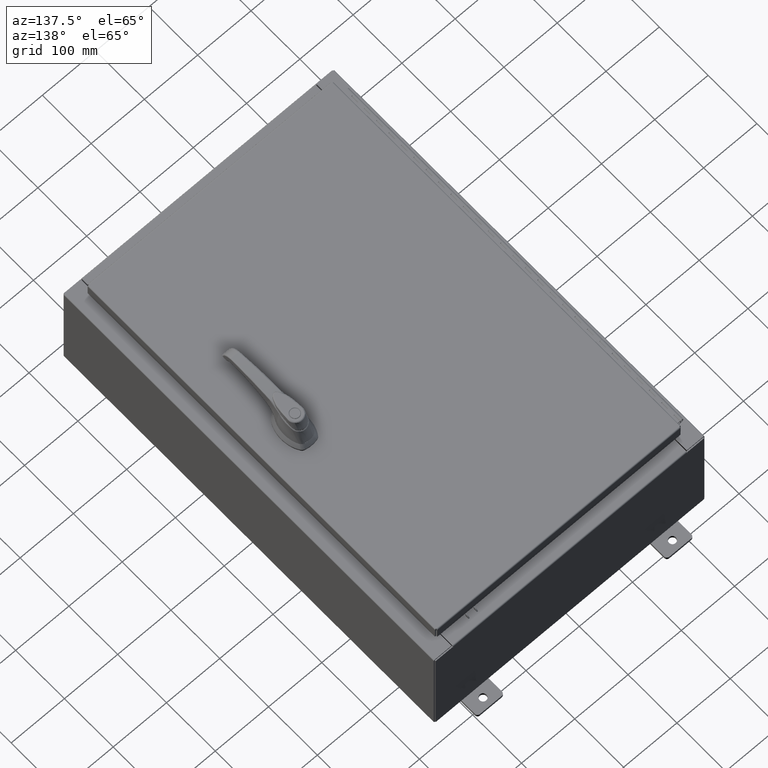
[diagram: clean part render]
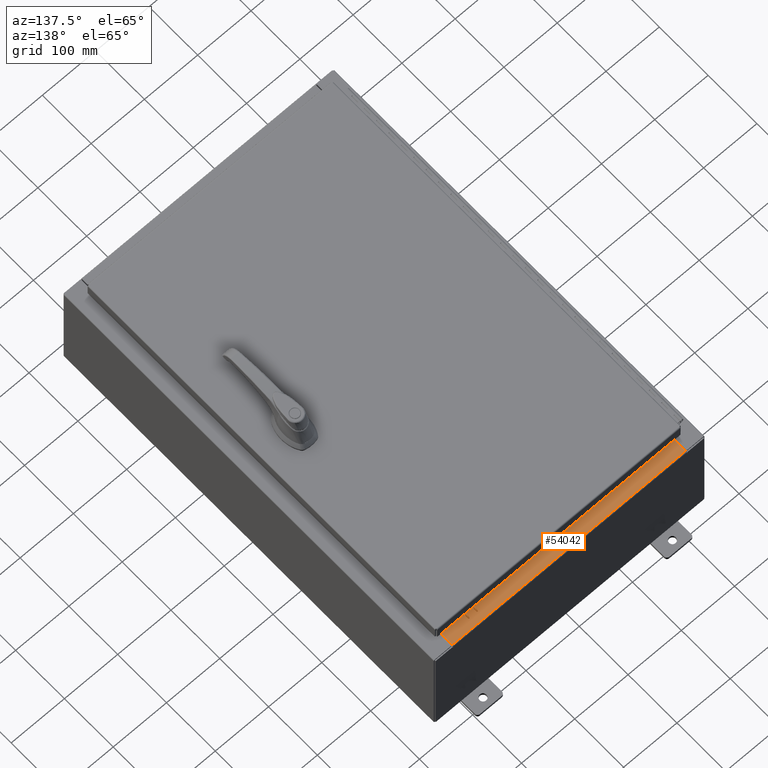
[diagram: same view with one face highlighted and labeled with its STEP entity id]
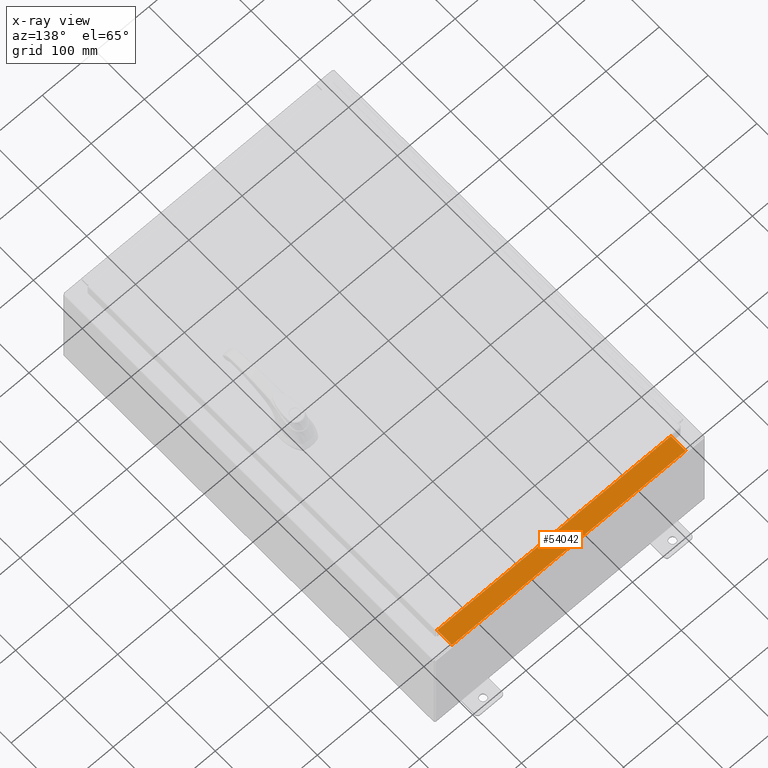
[diagram: x-ray of the same camera — body ghosted, the highlighted face saturated]
A machine part, auxiliary view. The second image highlights one B-rep face of the part: STEP entity #54042.
The next image is the same camera in x-ray: the body ghosted, the highlighted face saturated — about 0% of this face is hidden behind the body in this view.
In plain terms, the highlighted planar face has unit normal (0, 0, 1).
Its self-contained STEP definition (entity closure, byte-faithful):
#4374 = VERTEX_POINT ( 'NONE', #70024 ) ;
#4826 = LINE ( 'NONE', #111227, #99215 ) ;
#6048 = CARTESIAN_POINT ( 'NONE',  ( 8.637200000000000000, -0.08769999999999965300, 4.000000000000000000 ) ) ;
#15083 = CARTESIAN_POINT ( 'NONE',  ( -8.637200000000000000, -0.07469999999999973900, 4.000000000000000000 ) ) ;
#17427 = EDGE_LOOP ( 'NONE', ( #79514, #60363, #85621, #77915 ) ) ;
#18675 = LINE ( 'NONE', #15083, #67226 ) ;
#19374 = CARTESIAN_POINT ( 'NONE',  ( 8.637200000000000000, -1.287299999999999900, 4.000000000000003600 ) ) ;
#29132 = VERTEX_POINT ( 'NONE', #77469 ) ;
#35235 = CARTESIAN_POINT ( 'NONE',  ( 0.0000000000000000000, 1.425992975200418500E-014, 4.000000000000000000 ) ) ;
#37355 = EDGE_CURVE ( 'NONE', #29132, #4374, #69196, .T. ) ;
#38141 = VERTEX_POINT ( 'NONE', #6048 ) ;
#44404 = DIRECTION ( 'NONE',  ( 0.0000000000000000000, -1.000000000000000000, 3.566381192773190000E-015 ) ) ;
#46927 = DIRECTION ( 'NONE',  ( -1.000000000000000000, 0.0000000000000000000, 0.0000000000000000000 ) ) ;
#47787 = CARTESIAN_POINT ( 'NONE',  ( 8.637200000000000000, -1.300299999999999800, 4.000000000000004400 ) ) ;
#54042 = ADVANCED_FACE ( 'NONE', ( #105263 ), #89933, .T. ) ;
#56933 = DIRECTION ( 'NONE',  ( -0.0000000000000000000, -1.000000000000000000, 3.566381192773190000E-015 ) ) ;
#56977 = CARTESIAN_POINT ( 'NONE',  ( -8.637200000000000000, -0.08770000000000000000, 4.000000000000000000 ) ) ;
#60220 = EDGE_CURVE ( 'NONE', #4374, #99370, #18675, .T. ) ;
#60363 = ORIENTED_EDGE ( 'NONE', *, *, #37355, .F. ) ;
#67226 = VECTOR ( 'NONE', #69747, 39.37007874015748100 ) ;
#67933 = EDGE_CURVE ( 'NONE', #38141, #99370, #4826, .T. ) ;
#69196 = LINE ( 'NONE', #19374, #90667 ) ;
#69747 = DIRECTION ( 'NONE',  ( -0.0000000000000000000, 1.000000000000000000, -3.566381192773190000E-015 ) ) ;
#70024 = CARTESIAN_POINT ( 'NONE',  ( -8.637200000000000000, -1.287299999999999200, 4.000000000000004400 ) ) ;
#77469 = CARTESIAN_POINT ( 'NONE',  ( 8.637200000000000000, -1.287299999999999900, 4.000000000000004400 ) ) ;
#77915 = ORIENTED_EDGE ( 'NONE', *, *, #67933, .T. ) ;
#79514 = ORIENTED_EDGE ( 'NONE', *, *, #60220, .F. ) ;
#80281 = EDGE_CURVE ( 'NONE', #38141, #29132, #92037, .T. ) ;
#83969 = DIRECTION ( 'NONE',  ( -1.000000000000000000, 3.162886113166609200E-017, -1.128005754888089100E-031 ) ) ;
#84603 = AXIS2_PLACEMENT_3D ( 'NONE', #35235, #99144, #44404 ) ;
#85621 = ORIENTED_EDGE ( 'NONE', *, *, #80281, .F. ) ;
#89126 = VECTOR ( 'NONE', #56933, 39.37007874015748100 ) ;
#89933 = PLANE ( 'NONE',  #84603 ) ;
#90667 = VECTOR ( 'NONE', #46927, 39.37007874015748100 ) ;
#92037 = LINE ( 'NONE', #47787, #89126 ) ;
#99144 = DIRECTION ( 'NONE',  ( 0.0000000000000000000, 3.566381192773190000E-015, 1.000000000000000000 ) ) ;
#99215 = VECTOR ( 'NONE', #83969, 39.37007874015748100 ) ;
#99370 = VERTEX_POINT ( 'NONE', #56977 ) ;
#105263 = FACE_OUTER_BOUND ( 'NONE', #17427, .T. ) ;
#111227 = CARTESIAN_POINT ( 'NONE',  ( -2.773851121247567100E-018, -0.08770000000000000000, 4.000000000000000900 ) ) ;